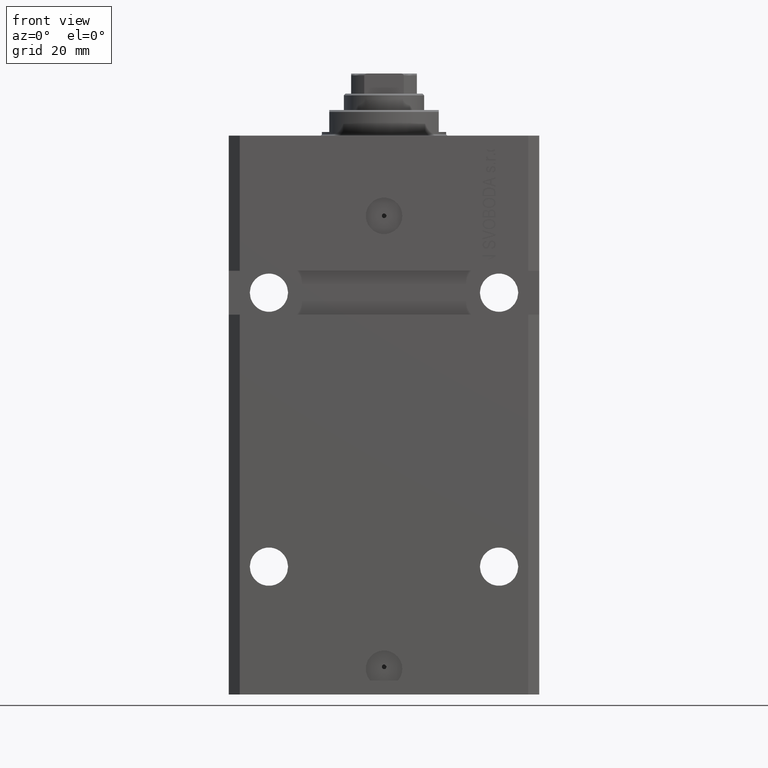
[diagram: clean part render]
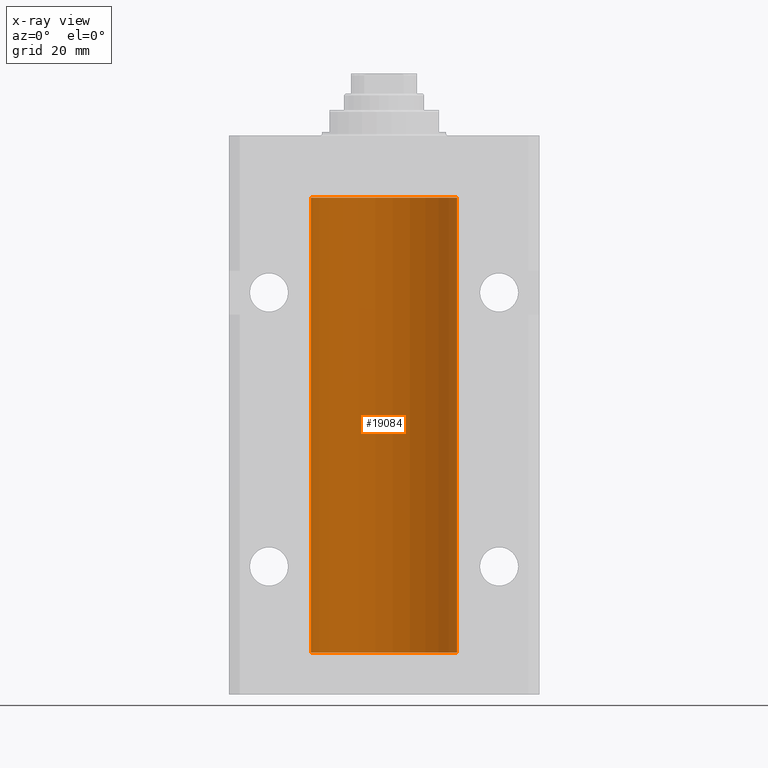
[diagram: x-ray — body ghosted, one internal face saturated and labeled with its STEP entity id]
A machine part, front view, then the same camera in x-ray: the body is ghosted and one INTERNAL B-rep face — a face not visible from any outside direction — is saturated and labeled: STEP entity #19084.
In plain terms, the highlighted cylindrical surface (partial cylindrical patch) has radius 20 mm, axis along (0, 0, 1).
Its self-contained STEP definition (entity closure, byte-faithful):
#202 = FACE_OUTER_BOUND ( 'NONE', #35400, .T. ) ;
#546 = CARTESIAN_POINT ( 'NONE',  ( -19.99256581701871482, 0.5573276956902001311, -23.67348565770948809 ) ) ;
#2201 = AXIS2_PLACEMENT_3D ( 'NONE', #18139, #32140, #21817 ) ;
#3986 = CARTESIAN_POINT ( 'NONE',  ( -20.00000000000010303, 3.580159282543646009E-13, -24.62500000000332889 ) ) ;
#4644 = CARTESIAN_POINT ( 'NONE',  ( -19.99999999999999645, 0.1631688615953307553, -139.6249999999998010 ) ) ;
#5982 = VECTOR ( 'NONE', #37725, 1000.000000000000000 ) ;
#6373 = LINE ( 'NONE', #38695, #22329 ) ;
#6581 = CIRCLE ( 'NONE', #2201, 20.00000000000000000 ) ;
#6905 = DIRECTION ( 'NONE',  ( -0.000000000000000000, -0.000000000000000000, 1.000000000000000000 ) ) ;
#7556 = EDGE_CURVE ( 'NONE', #37103, #31454, #21122, .T. ) ;
#7571 = CARTESIAN_POINT ( 'NONE',  ( -20.00000000000010303, 3.580159282543646009E-13, -24.62500000000332889 ) ) ;
#8266 = DIRECTION ( 'NONE',  ( 1.000000000000000000, 0.000000000000000000, 0.000000000000000000 ) ) ;
#8845 = CARTESIAN_POINT ( 'NONE',  ( -20.00000000000000000, 2.449293598294706513E-15, -17.00000000000000000 ) ) ;
#9145 = VERTEX_POINT ( 'NONE', #13122 ) ;
#10055 = CARTESIAN_POINT ( 'NONE',  ( -20.00000000000000000, 2.449293598294706513E-15, -141.5999999999999943 ) ) ;
#10332 = ORIENTED_EDGE ( 'NONE', *, *, #29161, .F. ) ;
#10859 = CARTESIAN_POINT ( 'NONE',  ( -20.00000000000000000, -2.867584836844214272E-15, -23.37500000000000000 ) ) ;
#10990 = EDGE_CURVE ( 'NONE', #40928, #31454, #24719, .T. ) ;
#11469 = DIRECTION ( 'NONE',  ( 0.000000000000000000, 0.000000000000000000, 1.000000000000000000 ) ) ;
#11647 = ORIENTED_EDGE ( 'NONE', *, *, #34482, .T. ) ;
#11732 = CARTESIAN_POINT ( 'NONE',  ( -20.00000000000000000, 0.08259581631025542103, -138.3749999999999716 ) ) ;
#13122 = CARTESIAN_POINT ( 'NONE',  ( 20.00000000000000000, 0.000000000000000000, -141.5999999999999943 ) ) ;
#14068 = CARTESIAN_POINT ( 'NONE',  ( -19.99023018003212471, 0.6250578794725500931, -24.16284809704970371 ) ) ;
#14745 = CARTESIAN_POINT ( 'NONE',  ( -19.99999999999999645, 0.08259581631026780002, -23.37500000000000000 ) ) ;
#14813 = AXIS2_PLACEMENT_3D ( 'NONE', #36219, #11469, #8266 ) ;
#14940 = CARTESIAN_POINT ( 'NONE',  ( -19.99023018003212471, 0.6250578794725458742, -139.1628480970496753 ) ) ;
#14991 = VECTOR ( 'NONE', #23687, 1000.000000000000000 ) ;
#15093 = VECTOR ( 'NONE', #6905, 1000.000000000000000 ) ;
#16647 = LINE ( 'NONE', #23982, #5982 ) ;
#17524 = CARTESIAN_POINT ( 'NONE',  ( -19.99947377218718714, 0.1636439183262877461, -23.39126364004656011 ) ) ;
#17625 = CARTESIAN_POINT ( 'NONE',  ( 0.000000000000000000, 0.000000000000000000, -141.5999999999999943 ) ) ;
#17957 = CARTESIAN_POINT ( 'NONE',  ( -20.00000000000000000, 0.1631688615953320320, -24.62499999999985434 ) ) ;
#18139 = CARTESIAN_POINT ( 'NONE',  ( 0.000000000000000000, 0.000000000000000000, -141.5999999999999943 ) ) ;
#19084 = ADVANCED_FACE ( 'NONE', ( #202 ), #31170, .F. ) ;
#19281 = CARTESIAN_POINT ( 'NONE',  ( -19.99947377218718358, 0.1636439183262808073, -138.3912636400466170 ) ) ;
#20593 = DIRECTION ( 'NONE',  ( -0.000000000000000000, -0.000000000000000000, 1.000000000000000000 ) ) ;
#21122 = LINE ( 'NONE', #24118, #15093 ) ;
#21533 = EDGE_CURVE ( 'NONE', #9145, #44426, #6581, .T. ) ;
#21817 = DIRECTION ( 'NONE',  ( 1.000000000000000000, 0.000000000000000000, 0.000000000000000000 ) ) ;
#22329 = VECTOR ( 'NONE', #20593, 1000.000000000000000 ) ;
#23327 = B_SPLINE_CURVE_WITH_KNOTS ( 'NONE', 3,
 ( #43388, #11732, #19281, #39707, #39483, #39931, #25953, #14940, #36931, #28941, #4644, #36261 ),
 .UNSPECIFIED., .F., .F.,
 ( 4, 2, 2, 2, 2, 4 ),
 ( 5.247116368830962784E-19, 0.0002442693137305545852, 0.0004885386274611086283, 0.0009770772549221576255, 0.001465615882383206840, 0.001954154509844256270 ),
 .UNSPECIFIED. ) ;
#23687 = DIRECTION ( 'NONE',  ( -0.000000000000000000, -0.000000000000000000, 1.000000000000000000 ) ) ;
#23982 = CARTESIAN_POINT ( 'NONE',  ( -20.00000000000000000, 2.449293598294706513E-15, -141.5999999999999943 ) ) ;
#24118 = CARTESIAN_POINT ( 'NONE',  ( -20.00000000000000000, 2.449293598294706513E-15, -141.5999999999999943 ) ) ;
#24223 = ORIENTED_EDGE ( 'NONE', *, *, #41422, .F. ) ;
#24350 = CIRCLE ( 'NONE', #14813, 20.00000000000000000 ) ;
#24628 = CARTESIAN_POINT ( 'NONE',  ( -19.99253506710754991, 0.5587120480776751608, -24.32511620830248589 ) ) ;
#24719 = B_SPLINE_CURVE_WITH_KNOTS ( 'NONE', 3,
 ( #10859, #14745, #17524, #32411, #28747, #546, #42051, #14068, #24628, #38839, #17957, #3986 ),
 .UNSPECIFIED., .F., .F.,
 ( 4, 2, 2, 2, 2, 4 ),
 ( 5.848927291235706941E-19, 0.0002442693137305304075, 0.0004885386274610601645, 0.0009770772549221123059, 0.001465615882383164339, 0.001954154509844215938 ),
 .UNSPECIFIED. ) ;
#25953 = CARTESIAN_POINT ( 'NONE',  ( -19.99023380173166231, 0.6249420416828387337, -138.8367079305639606 ) ) ;
#27113 = CARTESIAN_POINT ( 'NONE',  ( -20.00000000000010303, 3.580159249456421507E-13, -139.6250000000033253 ) ) ;
#27334 = VERTEX_POINT ( 'NONE', #27113 ) ;
#27345 = CARTESIAN_POINT ( 'NONE',  ( -20.00000000000000000, -1.756252550797319649E-14, -138.3749999999999716 ) ) ;
#28747 = CARTESIAN_POINT ( 'NONE',  ( -19.99638934703457593, 0.3843678041337688644, -23.50046362978100944 ) ) ;
#28941 = CARTESIAN_POINT ( 'NONE',  ( -19.99769349528941120, 0.3253804398728610270, -139.5585582072767750 ) ) ;
#29161 = EDGE_CURVE ( 'NONE', #44426, #27334, #16647, .T. ) ;
#30414 = ORIENTED_EDGE ( 'NONE', *, *, #42250, .T. ) ;
#30520 = ORIENTED_EDGE ( 'NONE', *, *, #10990, .T. ) ;
#30711 = DIRECTION ( 'NONE',  ( -0.000000000000000000, -0.000000000000000000, 1.000000000000000000 ) ) ;
#31061 = CARTESIAN_POINT ( 'NONE',  ( 20.00000000000000000, 0.000000000000000000, -17.00000000000000000 ) ) ;
#31170 = CYLINDRICAL_SURFACE ( 'NONE', #40946, 20.00000000000000000 ) ;
#31258 = LINE ( 'NONE', #37660, #14991 ) ;
#31435 = EDGE_CURVE ( 'NONE', #33246, #33148, #24350, .T. ) ;
#31454 = VERTEX_POINT ( 'NONE', #7571 ) ;
#32140 = DIRECTION ( 'NONE',  ( 0.000000000000000000, 0.000000000000000000, 1.000000000000000000 ) ) ;
#32411 = CARTESIAN_POINT ( 'NONE',  ( -19.99766197842594906, 0.3150331617867667688, -23.45402070102505476 ) ) ;
#33148 = VERTEX_POINT ( 'NONE', #8845 ) ;
#33246 = VERTEX_POINT ( 'NONE', #31061 ) ;
#34482 = EDGE_CURVE ( 'NONE', #37103, #27334, #23327, .T. ) ;
#35400 = EDGE_LOOP ( 'NONE', ( #10332, #43544, #30414, #41303, #24223, #30520, #43751, #11647 ) ) ;
#36219 = CARTESIAN_POINT ( 'NONE',  ( 0.000000000000000000, 0.000000000000000000, -17.00000000000000000 ) ) ;
#36261 = CARTESIAN_POINT ( 'NONE',  ( -20.00000000000010303, 3.580159249456421507E-13, -139.6250000000033253 ) ) ;
#36931 = CARTESIAN_POINT ( 'NONE',  ( -19.99253506710755346, 0.5587120480776690545, -139.3251162083025463 ) ) ;
#37103 = VERTEX_POINT ( 'NONE', #27345 ) ;
#37660 = CARTESIAN_POINT ( 'NONE',  ( -20.00000000000000000, 2.449293598294706513E-15, -141.5999999999999943 ) ) ;
#37725 = DIRECTION ( 'NONE',  ( -0.000000000000000000, -0.000000000000000000, 1.000000000000000000 ) ) ;
#37808 = DIRECTION ( 'NONE',  ( 1.000000000000000000, 0.000000000000000000, 0.000000000000000000 ) ) ;
#38695 = CARTESIAN_POINT ( 'NONE',  ( 20.00000000000000000, 0.000000000000000000, -141.5999999999999943 ) ) ;
#38839 = CARTESIAN_POINT ( 'NONE',  ( -19.99769349528941120, 0.3253804398728645242, -24.55855820727680339 ) ) ;
#39483 = CARTESIAN_POINT ( 'NONE',  ( -19.99638934703457238, 0.3843678041337506568, -138.5004636297809952 ) ) ;
#39707 = CARTESIAN_POINT ( 'NONE',  ( -19.99766197842594195, 0.3150331617867615508, -138.4540207010250299 ) ) ;
#39931 = CARTESIAN_POINT ( 'NONE',  ( -19.99256581701871482, 0.5573276956901845880, -138.6734856577095059 ) ) ;
#40928 = VERTEX_POINT ( 'NONE', #41956 ) ;
#40946 = AXIS2_PLACEMENT_3D ( 'NONE', #17625, #30711, #37808 ) ;
#41303 = ORIENTED_EDGE ( 'NONE', *, *, #31435, .T. ) ;
#41422 = EDGE_CURVE ( 'NONE', #40928, #33148, #31258, .T. ) ;
#41956 = CARTESIAN_POINT ( 'NONE',  ( -20.00000000000000000, -2.867584836844214272E-15, -23.37500000000000000 ) ) ;
#42051 = CARTESIAN_POINT ( 'NONE',  ( -19.99023380173166231, 0.6249420416828462832, -23.83670793056396064 ) ) ;
#42250 = EDGE_CURVE ( 'NONE', #9145, #33246, #6373, .T. ) ;
#43388 = CARTESIAN_POINT ( 'NONE',  ( -20.00000000000000000, -1.756252550797319649E-14, -138.3749999999999716 ) ) ;
#43544 = ORIENTED_EDGE ( 'NONE', *, *, #21533, .F. ) ;
#43751 = ORIENTED_EDGE ( 'NONE', *, *, #7556, .F. ) ;
#44426 = VERTEX_POINT ( 'NONE', #10055 ) ;